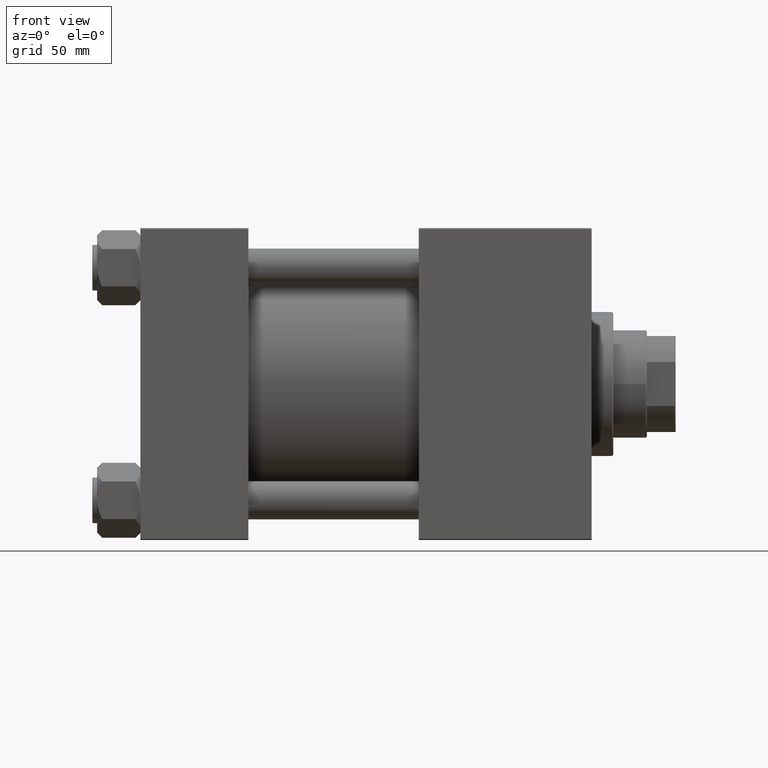
[diagram: clean part render]
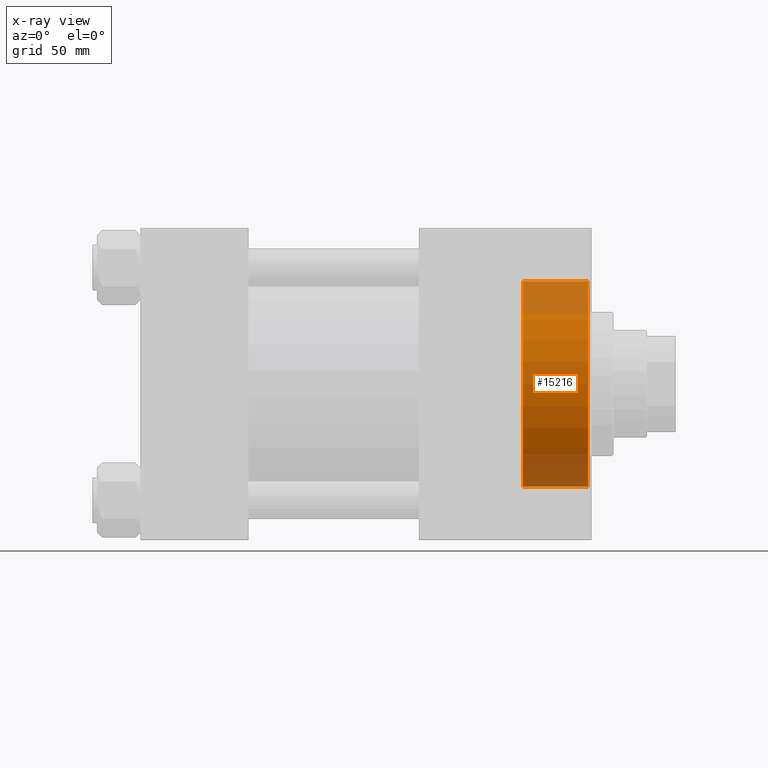
[diagram: x-ray — body ghosted, one internal face saturated and labeled with its STEP entity id]
A machine part, front view, then the same camera in x-ray: the body is ghosted and one INTERNAL B-rep face — a face not visible from any outside direction — is saturated and labeled: STEP entity #15216.
In plain terms, the highlighted cylindrical surface (partial cylindrical patch) has radius 42.75 mm, axis along (1, 0, 0).
Its self-contained STEP definition (entity closure, byte-faithful):
#49 = ORIENTED_EDGE ( 'NONE', *, *, #8186, .F. ) ;
#189 = EDGE_LOOP ( 'NONE', ( #49, #42111, #27772, #16766 ) ) ;
#782 = CARTESIAN_POINT ( 'NONE',  ( 159.3000000000000114, 0.000000000000000000, 0.000000000000000000 ) ) ;
#2824 = AXIS2_PLACEMENT_3D ( 'NONE', #45406, #20858, #40822 ) ;
#3897 = EDGE_CURVE ( 'NONE', #26007, #31752, #18954, .T. ) ;
#4217 = AXIS2_PLACEMENT_3D ( 'NONE', #31548, #46914, #11865 ) ;
#5218 = CYLINDRICAL_SURFACE ( 'NONE', #2824, 42.75000000000000000 ) ;
#8186 = EDGE_CURVE ( 'NONE', #42620, #19899, #13396, .T. ) ;
#11865 = DIRECTION ( 'NONE',  ( 0.000000000000000000, 0.000000000000000000, 1.000000000000000000 ) ) ;
#13396 = CIRCLE ( 'NONE', #32985, 42.75000000000000000 ) ;
#15216 = ADVANCED_FACE ( 'NONE', ( #44396 ), #5218, .F. ) ;
#16766 = ORIENTED_EDGE ( 'NONE', *, *, #26919, .F. ) ;
#18954 = CIRCLE ( 'NONE', #4217, 42.75000000000000000 ) ;
#19899 = VERTEX_POINT ( 'NONE', #47926 ) ;
#20858 = DIRECTION ( 'NONE',  ( 1.000000000000000000, -0.000000000000000000, -0.000000000000000000 ) ) ;
#22086 = DIRECTION ( 'NONE',  ( 1.000000000000000000, -0.000000000000000000, -0.000000000000000000 ) ) ;
#24078 = DIRECTION ( 'NONE',  ( 1.000000000000000000, 0.000000000000000000, 0.000000000000000000 ) ) ;
#26007 = VERTEX_POINT ( 'NONE', #29199 ) ;
#26575 = CARTESIAN_POINT ( 'NONE',  ( 159.3000000000000114, 0.000000000000000000, -42.75000000000000000 ) ) ;
#26919 = EDGE_CURVE ( 'NONE', #19899, #31752, #27084, .T. ) ;
#27084 = LINE ( 'NONE', #26575, #30198 ) ;
#27772 = ORIENTED_EDGE ( 'NONE', *, *, #3897, .T. ) ;
#29199 = CARTESIAN_POINT ( 'NONE',  ( 186.5000000000000284, 5.235365066354935472E-15, 42.75000000000000000 ) ) ;
#30005 = LINE ( 'NONE', #38684, #30589 ) ;
#30198 = VECTOR ( 'NONE', #42443, 1000.000000000000000 ) ;
#30589 = VECTOR ( 'NONE', #22086, 1000.000000000000000 ) ;
#31548 = CARTESIAN_POINT ( 'NONE',  ( 186.5000000000000284, 0.000000000000000000, 0.000000000000000000 ) ) ;
#31752 = VERTEX_POINT ( 'NONE', #44859 ) ;
#32985 = AXIS2_PLACEMENT_3D ( 'NONE', #782, #24078, #48404 ) ;
#38684 = CARTESIAN_POINT ( 'NONE',  ( 159.3000000000000114, 5.235365066354935472E-15, 42.75000000000000000 ) ) ;
#39122 = CARTESIAN_POINT ( 'NONE',  ( 159.3000000000000114, 5.235365066354935472E-15, 42.75000000000000000 ) ) ;
#39389 = EDGE_CURVE ( 'NONE', #42620, #26007, #30005, .T. ) ;
#40822 = DIRECTION ( 'NONE',  ( 0.000000000000000000, 0.000000000000000000, -1.000000000000000000 ) ) ;
#42111 = ORIENTED_EDGE ( 'NONE', *, *, #39389, .T. ) ;
#42443 = DIRECTION ( 'NONE',  ( 1.000000000000000000, -0.000000000000000000, -0.000000000000000000 ) ) ;
#42620 = VERTEX_POINT ( 'NONE', #39122 ) ;
#44396 = FACE_OUTER_BOUND ( 'NONE', #189, .T. ) ;
#44859 = CARTESIAN_POINT ( 'NONE',  ( 186.5000000000000284, 0.000000000000000000, -42.75000000000000000 ) ) ;
#45406 = CARTESIAN_POINT ( 'NONE',  ( 159.3000000000000114, 0.000000000000000000, 0.000000000000000000 ) ) ;
#46914 = DIRECTION ( 'NONE',  ( 1.000000000000000000, 0.000000000000000000, 0.000000000000000000 ) ) ;
#47926 = CARTESIAN_POINT ( 'NONE',  ( 159.3000000000000114, 0.000000000000000000, -42.75000000000000000 ) ) ;
#48404 = DIRECTION ( 'NONE',  ( 0.000000000000000000, 0.000000000000000000, -1.000000000000000000 ) ) ;